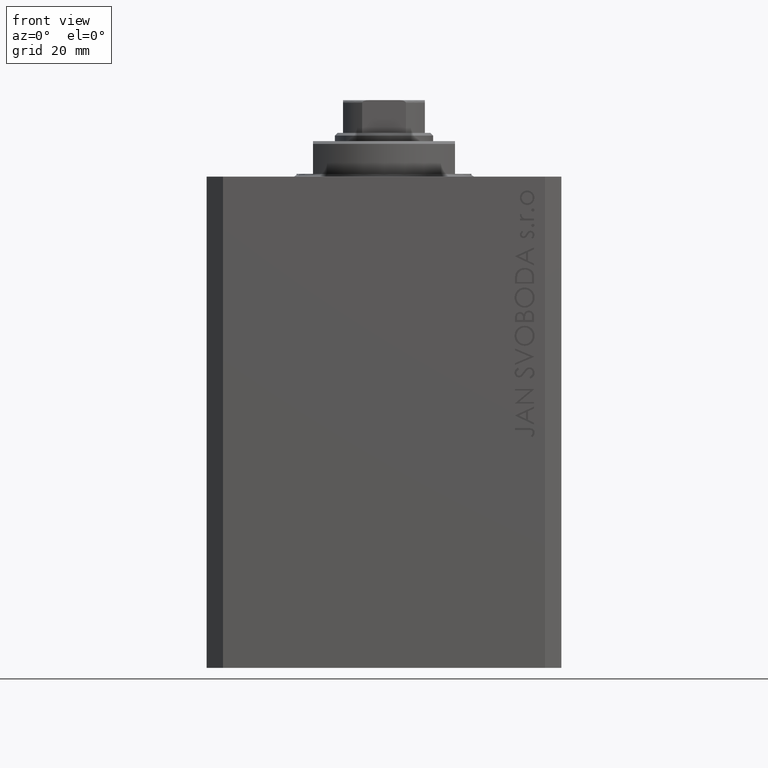
[diagram: clean part render]
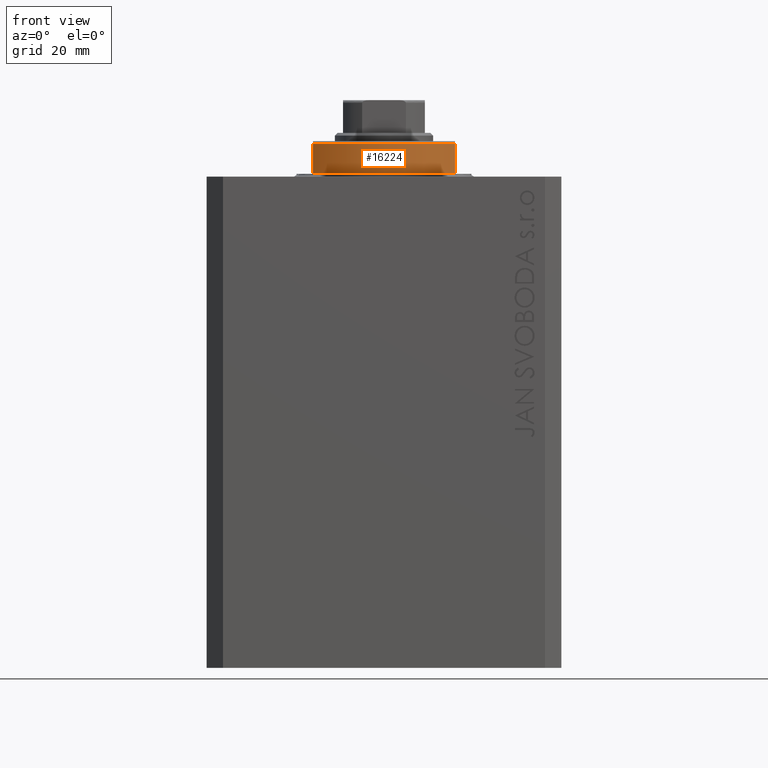
[diagram: same view with one face highlighted and labeled with its STEP entity id]
A machine part, front view. The second image highlights one B-rep face of the part: STEP entity #16224.
In plain terms, the highlighted cylindrical surface (partial cylindrical patch) has radius 16 mm, axis along (0, 0, -1).
Its self-contained STEP definition (entity closure, byte-faithful):
#142 = VECTOR ( 'NONE', #4178, 1000.000000000000000 ) ;
#387 = CARTESIAN_POINT ( 'NONE',  ( -13.00000000000000000, -9.327379053088815652, -6.000000000000023981 ) ) ;
#1095 = ORIENTED_EDGE ( 'NONE', *, *, #30936, .T. ) ;
#1289 = VERTEX_POINT ( 'NONE', #27675 ) ;
#1585 = VECTOR ( 'NONE', #27699, 1000.000000000000000 ) ;
#1913 = CARTESIAN_POINT ( 'NONE',  ( -13.00000000000000000, -9.327379053088815652, -0.4999999999999995559 ) ) ;
#2940 = CIRCLE ( 'NONE', #42726, 16.00000000000000000 ) ;
#4178 = DIRECTION ( 'NONE',  ( 0.000000000000000000, 0.000000000000000000, -1.000000000000000000 ) ) ;
#4422 = ORIENTED_EDGE ( 'NONE', *, *, #45476, .F. ) ;
#5913 = CARTESIAN_POINT ( 'NONE',  ( 0.000000000000000000, 0.000000000000000000, -0.4999999999999995559 ) ) ;
#6623 = CIRCLE ( 'NONE', #35710, 16.00000000000000000 ) ;
#8566 = CARTESIAN_POINT ( 'NONE',  ( 0.000000000000000000, 0.000000000000000000, -6.000000000000023981 ) ) ;
#9396 = AXIS2_PLACEMENT_3D ( 'NONE', #20905, #21385, #42723 ) ;
#12867 = DIRECTION ( 'NONE',  ( -0.000000000000000000, -0.000000000000000000, -1.000000000000000000 ) ) ;
#13298 = LINE ( 'NONE', #23872, #1585 ) ;
#13370 = CARTESIAN_POINT ( 'NONE',  ( 13.00000000000000000, -9.327379053088815652, -6.000000000000023981 ) ) ;
#13482 = CYLINDRICAL_SURFACE ( 'NONE', #9396, 16.00000000000000000 ) ;
#15273 = DIRECTION ( 'NONE',  ( -1.000000000000000000, 0.000000000000000000, 0.000000000000000000 ) ) ;
#16224 = ADVANCED_FACE ( 'NONE', ( #18020 ), #13482, .T. ) ;
#16725 = ORIENTED_EDGE ( 'NONE', *, *, #41814, .T. ) ;
#17896 = VERTEX_POINT ( 'NONE', #1913 ) ;
#18020 = FACE_OUTER_BOUND ( 'NONE', #37248, .T. ) ;
#18877 = DIRECTION ( 'NONE',  ( 0.000000000000000000, 0.000000000000000000, 1.000000000000000000 ) ) ;
#20905 = CARTESIAN_POINT ( 'NONE',  ( 0.000000000000000000, 0.000000000000000000, -6.500000000000000000 ) ) ;
#21385 = DIRECTION ( 'NONE',  ( -0.000000000000000000, -0.000000000000000000, 1.000000000000000000 ) ) ;
#23872 = CARTESIAN_POINT ( 'NONE',  ( -13.00000000000000000, -9.327379053088813876, -6.500000000000000000 ) ) ;
#24432 = ORIENTED_EDGE ( 'NONE', *, *, #26128, .T. ) ;
#26128 = EDGE_CURVE ( 'NONE', #35416, #39978, #6623, .T. ) ;
#26479 = CARTESIAN_POINT ( 'NONE',  ( 13.00000000000000000, -9.327379053088813876, -6.500000000000000000 ) ) ;
#27675 = CARTESIAN_POINT ( 'NONE',  ( 13.00000000000000000, -9.327379053088815652, -0.4999999999999995559 ) ) ;
#27699 = DIRECTION ( 'NONE',  ( 0.000000000000000000, 0.000000000000000000, -1.000000000000000000 ) ) ;
#30936 = EDGE_CURVE ( 'NONE', #1289, #17896, #2940, .T. ) ;
#35416 = VERTEX_POINT ( 'NONE', #387 ) ;
#35710 = AXIS2_PLACEMENT_3D ( 'NONE', #8566, #18877, #15273 ) ;
#37248 = EDGE_LOOP ( 'NONE', ( #4422, #1095, #16725, #24432 ) ) ;
#37480 = LINE ( 'NONE', #26479, #142 ) ;
#38037 = DIRECTION ( 'NONE',  ( 1.000000000000000000, 0.000000000000000000, 0.000000000000000000 ) ) ;
#39978 = VERTEX_POINT ( 'NONE', #13370 ) ;
#41814 = EDGE_CURVE ( 'NONE', #17896, #35416, #13298, .T. ) ;
#42723 = DIRECTION ( 'NONE',  ( 1.000000000000000000, 0.000000000000000000, 0.000000000000000000 ) ) ;
#42726 = AXIS2_PLACEMENT_3D ( 'NONE', #5913, #12867, #38037 ) ;
#45476 = EDGE_CURVE ( 'NONE', #1289, #39978, #37480, .T. ) ;